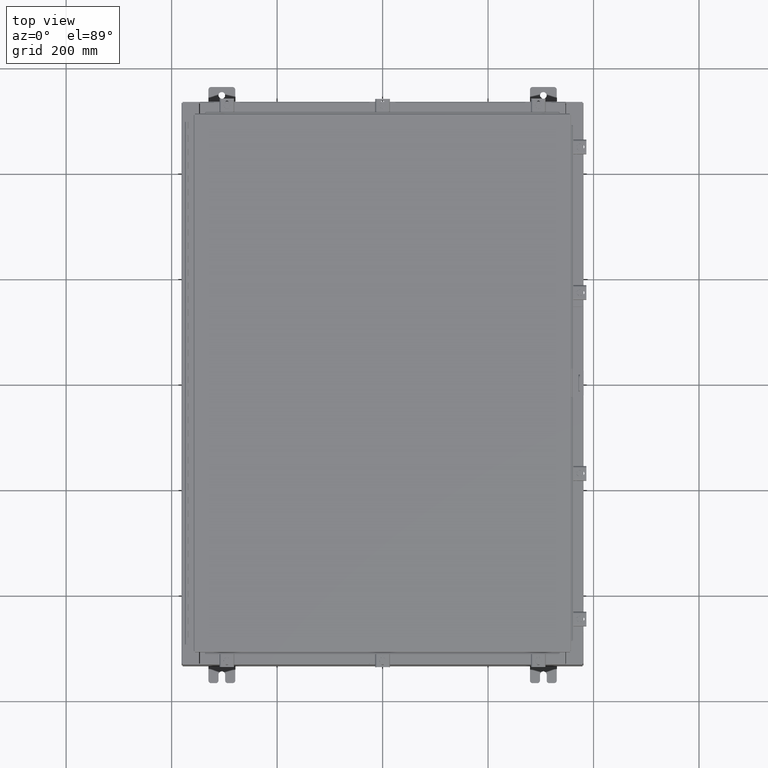
[diagram: clean part render]
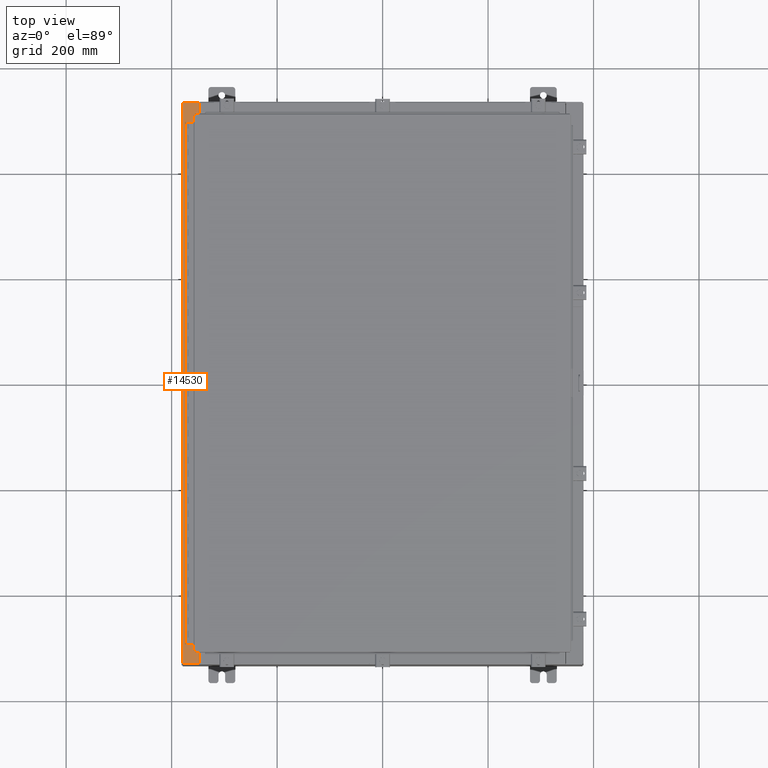
[diagram: same view with one face highlighted and labeled with its STEP entity id]
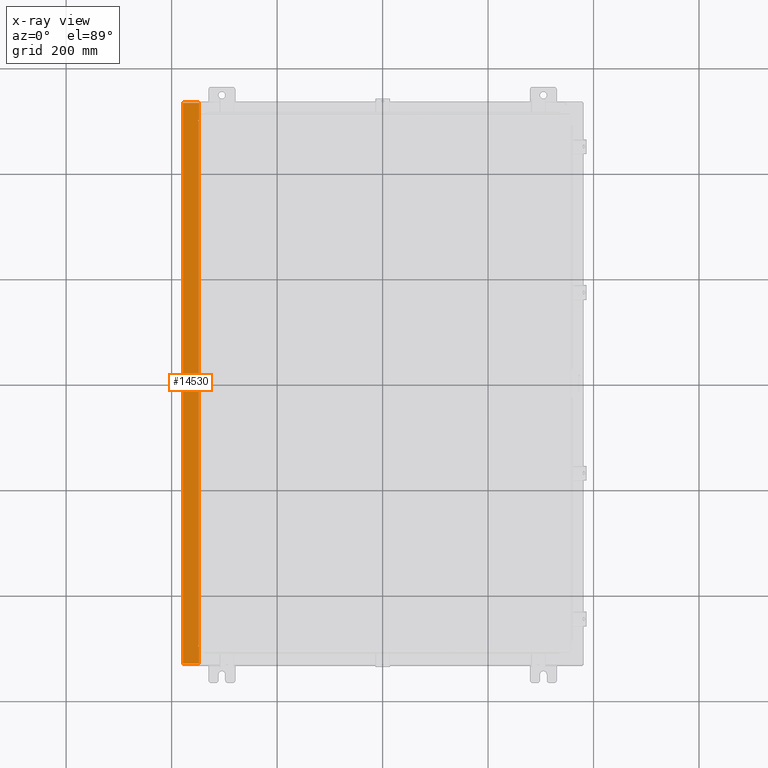
[diagram: x-ray of the same camera — body ghosted, the highlighted face saturated]
A machine part, top view. The second image highlights one B-rep face of the part: STEP entity #14530.
The next image is the same camera in x-ray: the body ghosted, the highlighted face saturated — about 0% of this face is hidden behind the body in this view.
In plain terms, the highlighted planar face has unit normal (0, 0, -1).
Its self-contained STEP definition (entity closure, byte-faithful):
#105 = EDGE_CURVE ( 'NONE', #32893, #23241, #40444, .T. ) ;
#480 = CARTESIAN_POINT ( 'NONE',  ( -13.71270000000002800, 19.59375000000000700, 7.925300000000010700 ) ) ;
#484 = DIRECTION ( 'NONE',  ( 7.132762385546384700E-015, 0.0000000000000000000, -1.000000000000000000 ) ) ;
#704 = AXIS2_PLACEMENT_3D ( 'NONE', #3119, #28892, #6827 ) ;
#1460 = EDGE_CURVE ( 'NONE', #40486, #27186, #47196, .T. ) ;
#1607 = LINE ( 'NONE', #33247, #18879 ) ;
#1924 = DIRECTION ( 'NONE',  ( 0.0000000000000000000, 1.000000000000000000, 0.0000000000000000000 ) ) ;
#2856 = EDGE_CURVE ( 'NONE', #6606, #16987, #29807, .T. ) ;
#3119 = CARTESIAN_POINT ( 'NONE',  ( -13.75005000000002700, 19.61242500000000200, 7.925300000000010700 ) ) ;
#3478 = VERTEX_POINT ( 'NONE', #19443 ) ;
#3970 = ORIENTED_EDGE ( 'NONE', *, *, #20775, .T. ) ;
#3973 = CARTESIAN_POINT ( 'NONE',  ( -13.75005000000002700, 19.59375000000000400, 7.925300000000010700 ) ) ;
#4147 = CARTESIAN_POINT ( 'NONE',  ( -13.75005000000002700, -19.61242499999998400, 7.925300000000010700 ) ) ;
#4194 = LINE ( 'NONE', #31521, #12838 ) ;
#4249 = VERTEX_POINT ( 'NONE', #36906 ) ;
#5363 = CARTESIAN_POINT ( 'NONE',  ( -13.75005000000002700, -19.59374999999998200, 7.925300000000007100 ) ) ;
#5782 = DIRECTION ( 'NONE',  ( 1.000000000000000000, -3.566381192773192400E-015, 7.132762385546384700E-015 ) ) ;
#5999 = LINE ( 'NONE', #3973, #14622 ) ;
#6434 = CARTESIAN_POINT ( 'NONE',  ( -14.91230000000002700, -20.92529999999998600, 7.925300000000000000 ) ) ;
#6606 = VERTEX_POINT ( 'NONE', #33992 ) ;
#6827 = DIRECTION ( 'NONE',  ( 1.000000000000000000, 0.0000000000000000000, 0.0000000000000000000 ) ) ;
#7681 = DIRECTION ( 'NONE',  ( 1.000000000000000000, 0.0000000000000000000, 0.0000000000000000000 ) ) ;
#7859 = DIRECTION ( 'NONE',  ( 1.000000000000000000, 0.0000000000000000000, 0.0000000000000000000 ) ) ;
#8089 = CARTESIAN_POINT ( 'NONE',  ( -13.75005000000002700, -19.63109999999998200, 7.925300000000010700 ) ) ;
#8901 = AXIS2_PLACEMENT_3D ( 'NONE', #4147, #29908, #7859 ) ;
#11403 = CARTESIAN_POINT ( 'NONE',  ( -14.91230000000002700, 20.92530000000000700, 7.925300000000000000 ) ) ;
#11478 = EDGE_CURVE ( 'NONE', #38191, #47528, #1607, .T. ) ;
#12474 = CIRCLE ( 'NONE', #704, 0.01867499999999949400 ) ;
#12614 = ORIENTED_EDGE ( 'NONE', *, *, #44783, .T. ) ;
#12838 = VECTOR ( 'NONE', #46164, 39.37007874015748100 ) ;
#14292 = ORIENTED_EDGE ( 'NONE', *, *, #105, .T. ) ;
#14486 = ORIENTED_EDGE ( 'NONE', *, *, #34223, .F. ) ;
#14530 = ADVANCED_FACE ( 'NONE', ( #45626 ), #18836, .F. ) ;
#14622 = VECTOR ( 'NONE', #7681, 39.37007874015748100 ) ;
#14876 = EDGE_LOOP ( 'NONE', ( #40569, #3970, #34163, #16207, #14292, #12614, #14486, #24905, #40114, #18285, #42333, #46551 ) ) ;
#15114 = DIRECTION ( 'NONE',  ( -0.0000000000000000000, 1.000000000000000000, -0.0000000000000000000 ) ) ;
#15737 = EDGE_CURVE ( 'NONE', #32893, #47528, #46087, .T. ) ;
#16003 = LINE ( 'NONE', #20287, #44220 ) ;
#16142 = DIRECTION ( 'NONE',  ( -1.000000000000000000, 0.0000000000000000000, 0.0000000000000000000 ) ) ;
#16207 = ORIENTED_EDGE ( 'NONE', *, *, #15737, .F. ) ;
#16987 = VERTEX_POINT ( 'NONE', #23373 ) ;
#17232 = CARTESIAN_POINT ( 'NONE',  ( -13.75005000000002700, -19.63109999999998200, 7.925300000000007100 ) ) ;
#18285 = ORIENTED_EDGE ( 'NONE', *, *, #2856, .F. ) ;
#18836 = PLANE ( 'NONE',  #36558 ) ;
#18879 = VECTOR ( 'NONE', #36962, 39.37007874015748100 ) ;
#19443 = CARTESIAN_POINT ( 'NONE',  ( -13.69970000000002800, -19.63109999999998600, 7.925300000000008900 ) ) ;
#19758 = VERTEX_POINT ( 'NONE', #33926 ) ;
#20287 = CARTESIAN_POINT ( 'NONE',  ( -13.69970000000002800, 0.0000000000000000000, 7.925300000000008900 ) ) ;
#20408 = CARTESIAN_POINT ( 'NONE',  ( -1.314176917633201200E-013, -20.92530000000003600, 7.925300000000105700 ) ) ;
#20775 = EDGE_CURVE ( 'NONE', #22836, #38191, #16003, .T. ) ;
#22836 = VERTEX_POINT ( 'NONE', #29940 ) ;
#22870 = LINE ( 'NONE', #30818, #41344 ) ;
#23241 = VERTEX_POINT ( 'NONE', #43256 ) ;
#23373 = CARTESIAN_POINT ( 'NONE',  ( -13.71270000000002800, -19.59374999999998200, 7.925300000000010700 ) ) ;
#24576 = EDGE_CURVE ( 'NONE', #22836, #19758, #4194, .T. ) ;
#24905 = ORIENTED_EDGE ( 'NONE', *, *, #1460, .F. ) ;
#26184 = CARTESIAN_POINT ( 'NONE',  ( -13.69970000000002800, 20.92530000000000700, 7.925300000000008900 ) ) ;
#26269 = DIRECTION ( 'NONE',  ( -1.000000000000000000, 0.0000000000000000000, -7.132762385546384700E-015 ) ) ;
#26293 = EDGE_CURVE ( 'NONE', #4249, #6606, #5999, .T. ) ;
#26483 = VECTOR ( 'NONE', #15114, 39.37007874015748100 ) ;
#27186 = VERTEX_POINT ( 'NONE', #17232 ) ;
#28654 = VECTOR ( 'NONE', #33682, 39.37007874015748100 ) ;
#28892 = DIRECTION ( 'NONE',  ( -7.132762385546384700E-015, -0.0000000000000000000, 1.000000000000000000 ) ) ;
#29807 = LINE ( 'NONE', #480, #28654 ) ;
#29908 = DIRECTION ( 'NONE',  ( -7.132762385546384700E-015, -0.0000000000000000000, 1.000000000000000000 ) ) ;
#29940 = CARTESIAN_POINT ( 'NONE',  ( -13.69970000000002800, 19.63110000000000400, 7.925300000000008900 ) ) ;
#30140 = DIRECTION ( 'NONE',  ( 1.000000000000000000, 0.0000000000000000000, -2.170286390200049500E-014 ) ) ;
#30661 = VECTOR ( 'NONE', #5782, 39.37007874015748100 ) ;
#30818 = CARTESIAN_POINT ( 'NONE',  ( -13.71270000000002800, -19.59374999999998200, 7.925300000000010700 ) ) ;
#31521 = CARTESIAN_POINT ( 'NONE',  ( -13.69970000000002800, 19.63110000000000400, 7.925300000000009800 ) ) ;
#32893 = VERTEX_POINT ( 'NONE', #6434 ) ;
#33247 = CARTESIAN_POINT ( 'NONE',  ( -5.679009539018309800E-014, 20.92530000000000700, 7.925300000000105700 ) ) ;
#33682 = DIRECTION ( 'NONE',  ( -0.0000000000000000000, -1.000000000000000000, -0.0000000000000000000 ) ) ;
#33926 = CARTESIAN_POINT ( 'NONE',  ( -13.75005000000002700, 19.63110000000000400, 7.925300000000007100 ) ) ;
#33992 = CARTESIAN_POINT ( 'NONE',  ( -13.71270000000002800, 19.59375000000000400, 7.925300000000010700 ) ) ;
#34163 = ORIENTED_EDGE ( 'NONE', *, *, #11478, .T. ) ;
#34223 = EDGE_CURVE ( 'NONE', #27186, #3478, #41717, .T. ) ;
#34235 = VECTOR ( 'NONE', #30140, 39.37007874015748100 ) ;
#34669 = VECTOR ( 'NONE', #45779, 39.37007874015748100 ) ;
#36558 = AXIS2_PLACEMENT_3D ( 'NONE', #40768, #484, #26269 ) ;
#36868 = CARTESIAN_POINT ( 'NONE',  ( -14.91230000000002700, 20.92530000000000700, 7.925300000000000000 ) ) ;
#36906 = CARTESIAN_POINT ( 'NONE',  ( -13.75005000000002700, 19.59375000000000400, 7.925300000000007100 ) ) ;
#36962 = DIRECTION ( 'NONE',  ( -1.000000000000000000, 0.0000000000000000000, -7.132762385546384700E-015 ) ) ;
#38191 = VERTEX_POINT ( 'NONE', #26184 ) ;
#38251 = CARTESIAN_POINT ( 'NONE',  ( -13.69970000000002800, 0.0000000000000000000, 7.925300000000008900 ) ) ;
#40114 = ORIENTED_EDGE ( 'NONE', *, *, #40426, .F. ) ;
#40426 = EDGE_CURVE ( 'NONE', #16987, #40486, #22870, .T. ) ;
#40444 = LINE ( 'NONE', #20408, #30661 ) ;
#40486 = VERTEX_POINT ( 'NONE', #5363 ) ;
#40569 = ORIENTED_EDGE ( 'NONE', *, *, #24576, .F. ) ;
#40768 = CARTESIAN_POINT ( 'NONE',  ( -5.679009539018309800E-014, 0.0000000000000000000, 7.925300000000105700 ) ) ;
#41344 = VECTOR ( 'NONE', #16142, 39.37007874015748100 ) ;
#41717 = LINE ( 'NONE', #8089, #34235 ) ;
#41826 = EDGE_CURVE ( 'NONE', #19758, #4249, #12474, .T. ) ;
#42333 = ORIENTED_EDGE ( 'NONE', *, *, #26293, .F. ) ;
#43256 = CARTESIAN_POINT ( 'NONE',  ( -13.69970000000002800, -20.92529999999998600, 7.925300000000008900 ) ) ;
#44220 = VECTOR ( 'NONE', #1924, 39.37007874015748100 ) ;
#44442 = LINE ( 'NONE', #38251, #34669 ) ;
#44783 = EDGE_CURVE ( 'NONE', #23241, #3478, #44442, .T. ) ;
#45626 = FACE_OUTER_BOUND ( 'NONE', #14876, .T. ) ;
#45779 = DIRECTION ( 'NONE',  ( 0.0000000000000000000, 1.000000000000000000, 0.0000000000000000000 ) ) ;
#46087 = LINE ( 'NONE', #11403, #26483 ) ;
#46164 = DIRECTION ( 'NONE',  ( -1.000000000000000000, 0.0000000000000000000, 2.170286390200049500E-014 ) ) ;
#46551 = ORIENTED_EDGE ( 'NONE', *, *, #41826, .F. ) ;
#47196 = CIRCLE ( 'NONE', #8901, 0.01867499999999949400 ) ;
#47528 = VERTEX_POINT ( 'NONE', #36868 ) ;